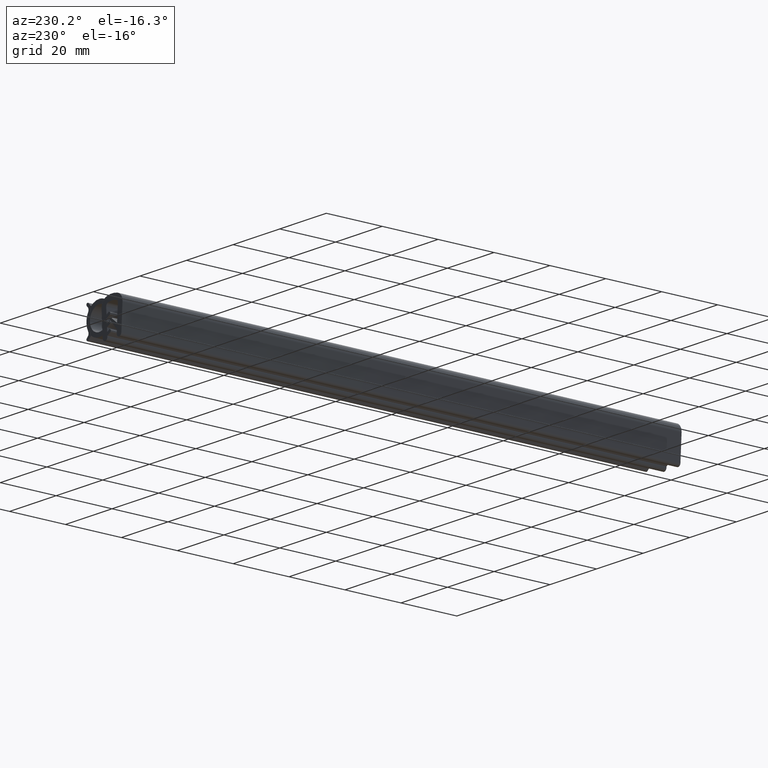
[diagram: clean part render]
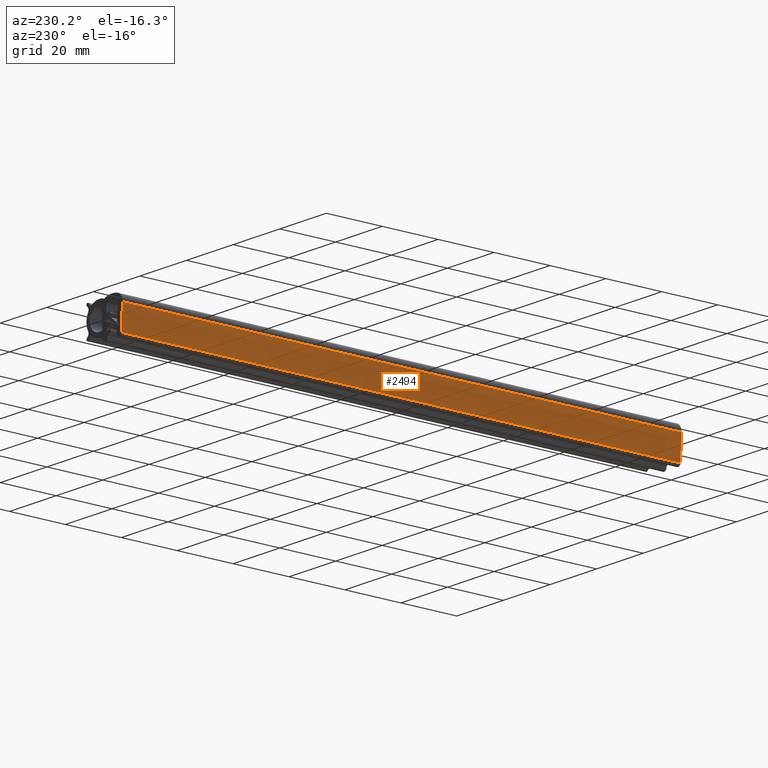
[diagram: same view with one face highlighted and labeled with its STEP entity id]
A machine part, auxiliary view. The second image highlights one B-rep face of the part: STEP entity #2494.
In plain terms, the highlighted face is a freeform B-spline surface patch.
Its self-contained STEP definition (entity closure, byte-faithful):
#1275=CARTESIAN_POINT('',(-4.496700841699860,0.0,-3.363194973418345));
#1276=VERTEX_POINT('',#1275);
#1290=CARTESIAN_POINT('',(-3.996700841700090,0.0,-12.057414607799180));
#1291=VERTEX_POINT('',#1290);
#1292=CARTESIAN_POINT('',(-4.496700841699860,0.0,-3.363194973418345));
#1293=CARTESIAN_POINT('',(-3.996700841700090,0.0,-12.057414607799180));
#1294=QUASI_UNIFORM_CURVE('',1,(#1292,#1293),.UNSPECIFIED.,.F.,.U.);
#1295=EDGE_CURVE('',#1276,#1291,#1294,.T.);
#1609=CARTESIAN_POINT('',(-4.496700841699860,200.0,-3.363194973418345));
#1610=VERTEX_POINT('',#1609);
#1895=CARTESIAN_POINT('',(-3.996700841700090,200.0,-12.057414607799180));
#1896=VERTEX_POINT('',#1895);
#1914=CARTESIAN_POINT('',(-4.496700841699860,200.0,-3.363194973418345));
#1915=CARTESIAN_POINT('',(-3.996700841700090,200.0,-12.057414607799180));
#1916=QUASI_UNIFORM_CURVE('',1,(#1914,#1915),.UNSPECIFIED.,.F.,.U.);
#1917=EDGE_CURVE('',#1610,#1896,#1916,.T.);
#2469=CARTESIAN_POINT('',(-3.996700841700090,200.0,-12.057414607799180));
#2470=CARTESIAN_POINT('',(-3.996700841700090,0.0,-12.057414607799180));
#2471=QUASI_UNIFORM_CURVE('',1,(#2469,#2470),.UNSPECIFIED.,.F.,.U.);
#2472=EDGE_CURVE('',#1896,#1291,#2471,.T.);
#2479=CARTESIAN_POINT('',(-3.971725814507346,-9.989999612361169,-12.491691351376099));
#2480=CARTESIAN_POINT('',(-4.521675855481560,-9.989999612361171,-2.928918463038571));
#2481=CARTESIAN_POINT('',(-3.971725814507346,209.990004976779200,-12.491691351376099));
#2482=CARTESIAN_POINT('',(-4.521675855481560,209.990004976779200,-2.928918463038571));
#2483=B_SPLINE_SURFACE_WITH_KNOTS('',1,1,((#2479,#2481),(#2480,#2482)),.UNSPECIFIED.,.F.,.F.,.U.,(2,2),(2,2),(0.0,9.578573503475910),(0.0,219.980004589140410),.UNSPECIFIED.);
#2484=ORIENTED_EDGE('',*,*,#1295,.F.);
#2485=CARTESIAN_POINT('',(-4.496700841699860,200.0,-3.363194973418345));
#2486=CARTESIAN_POINT('',(-4.496700841699860,0.0,-3.363194973418345));
#2487=QUASI_UNIFORM_CURVE('',1,(#2485,#2486),.UNSPECIFIED.,.F.,.U.);
#2488=EDGE_CURVE('',#1610,#1276,#2487,.T.);
#2489=ORIENTED_EDGE('',*,*,#2488,.F.);
#2490=ORIENTED_EDGE('',*,*,#1917,.T.);
#2491=ORIENTED_EDGE('',*,*,#2472,.T.);
#2492=EDGE_LOOP('',(#2484,#2489,#2490,#2491));
#2493=FACE_OUTER_BOUND('',#2492,.T.);
#2494=ADVANCED_FACE('',(#2493),#2483,.T.);